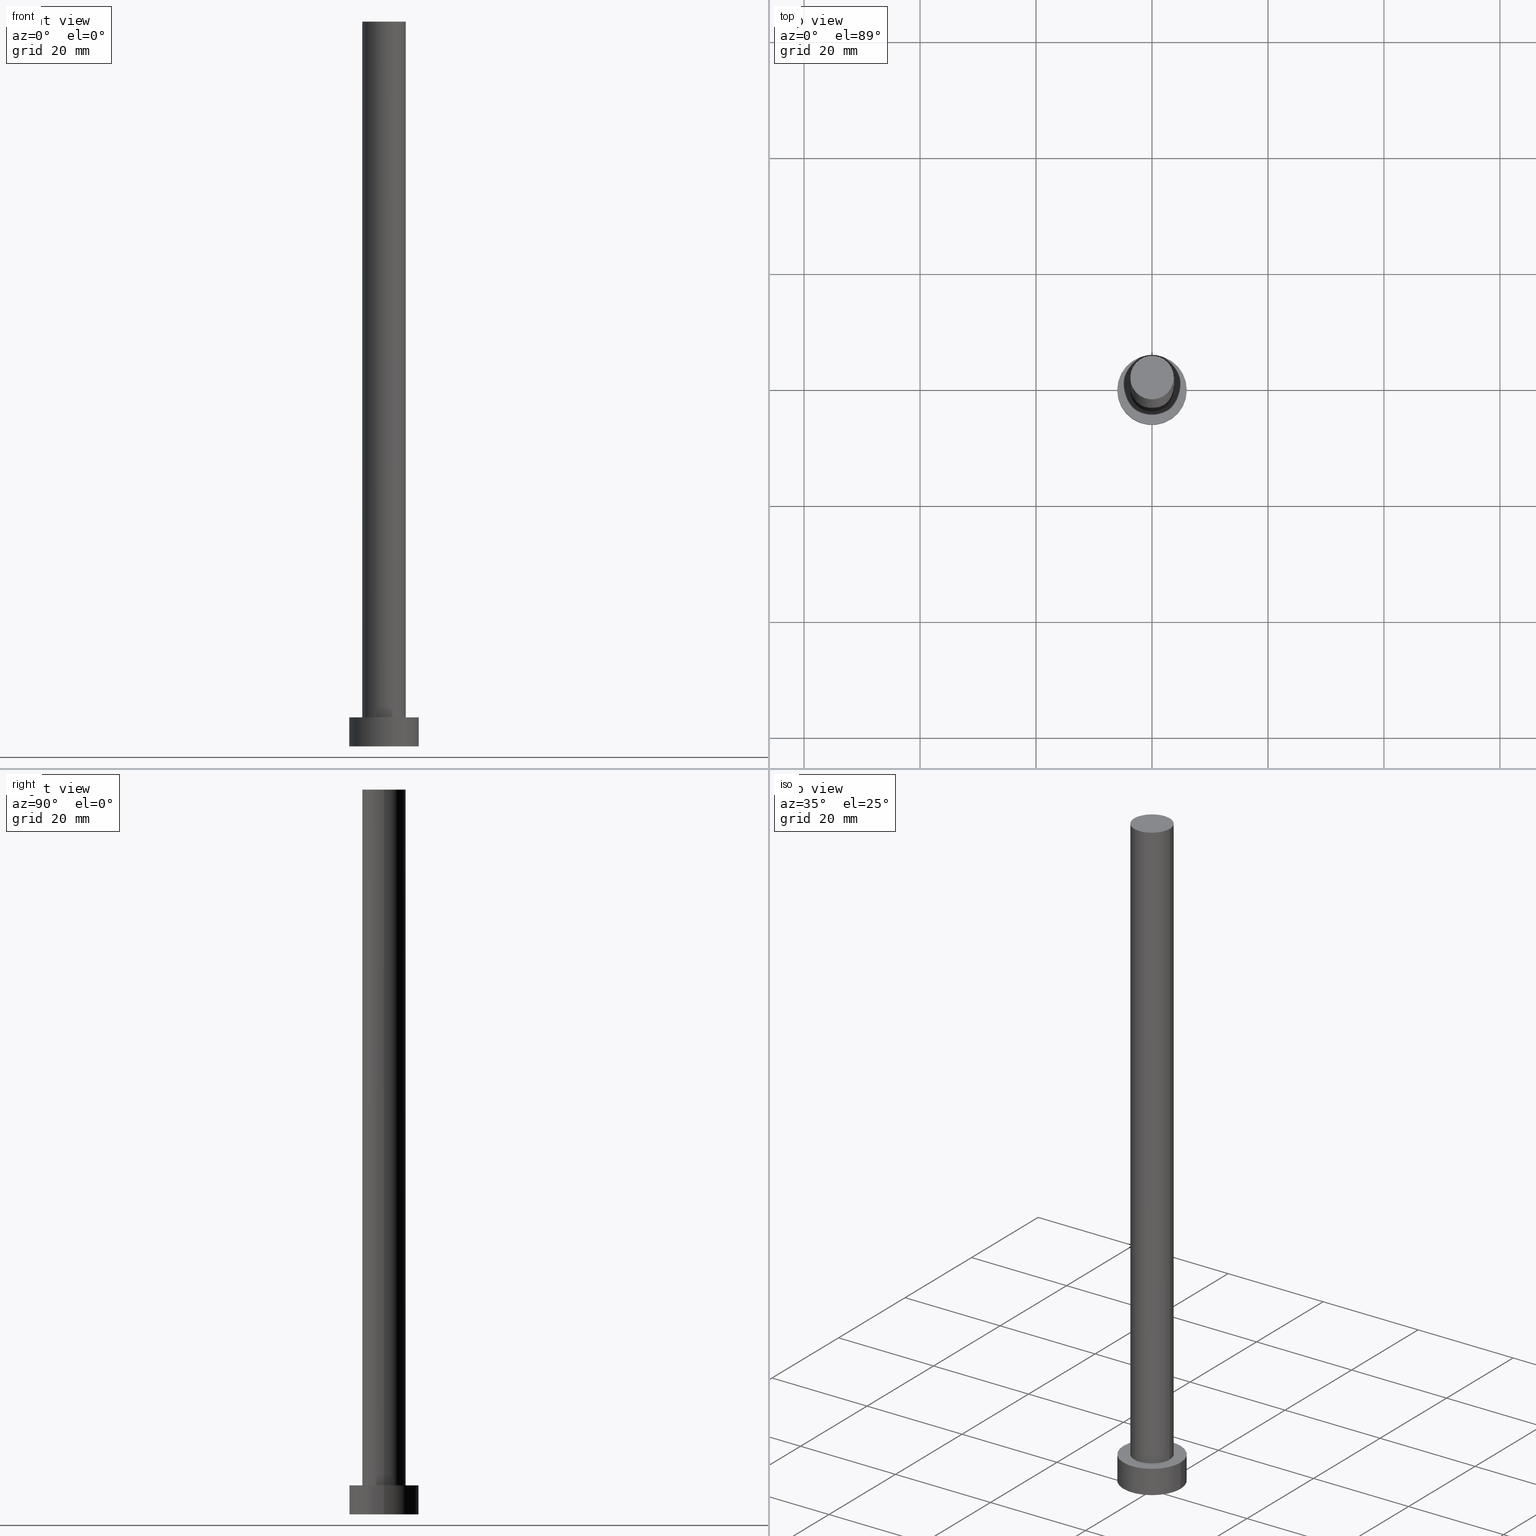
[diagram: canonical four-view strip — front | top / right | iso, engineering-drawing reading convention]
A machine part, canonical four-view strip (front | top / right | iso — engineering-drawing reading convention). The complete STEP part file that produces these views, byte-faithful:
ISO-10303-21;
HEADER;
FILE_DESCRIPTION (( 'STEP AP203' ),
    '1' );
FILE_NAME ('c810.STEP',
    '2023-02-13T13:35:08',
    ( '' ),
    ( '' ),
    'SwSTEP 2.0',
    'SolidWorks 2019',
    '' );
FILE_SCHEMA (( 'CONFIG_CONTROL_DESIGN' ));
ENDSEC;

DATA;
#1 = ADVANCED_FACE ( 'NONE', ( #90 ), #183, .T. ) ;
#2 = SHAPE_DEFINITION_REPRESENTATION ( #82, #41 ) ;
#3 = CARTESIAN_POINT ( 'NONE',  ( -6.000000000000000888, 0.000000000000000000, 5.000000000000000000 ) ) ;
#4 = ORIENTED_EDGE ( 'NONE', *, *, #112, .T. ) ;
#5 = APPROVAL ( #64, 'NEUR�EN�' ) ;
#6 = ORIENTED_EDGE ( 'NONE', *, *, #246, .T. ) ;
#7 = EDGE_LOOP ( 'NONE', ( #147, #161, #72, #6 ) ) ;
#8 = AXIS2_PLACEMENT_3D ( 'NONE', #249, #63, #117 ) ;
#9 = CIRCLE ( 'NONE', #78, 6.000000000000000888 ) ;
#10 = CARTESIAN_POINT ( 'NONE',  ( 0.000000000000000000, 0.000000000000000000, 5.000000000000000000 ) ) ;
#11 = ADVANCED_FACE ( 'NONE', ( #29 ), #107, .T. ) ;
#12 = UNCERTAINTY_MEASURE_WITH_UNIT (LENGTH_MEASURE( 1.000000000000000082E-05 ), #28, 'distance_accuracy_value', 'NONE');
#13 = CARTESIAN_POINT ( 'NONE',  ( 0.000000000000000000, 0.000000000000000000, 125.0000000000000000 ) ) ;
#14 = CARTESIAN_POINT ( 'NONE',  ( -6.000000000000000888, 0.000000000000000000, 5.000000000000000000 ) ) ;
#15 = CARTESIAN_POINT ( 'NONE',  ( 0.000000000000000000, 0.000000000000000000, 0.000000000000000000 ) ) ;
#16 = CARTESIAN_POINT ( 'NONE',  ( -3.750000000000000000, 0.000000000000000000, 125.0000000000000000 ) ) ;
#17 = AXIS2_PLACEMENT_3D ( 'NONE', #13, #113, #59 ) ;
#18 = PRODUCT_RELATED_PRODUCT_CATEGORY ( 'detail', '', ( #213 ) ) ;
#19 = PERSON_AND_ORGANIZATION ( #253, #127 ) ;
#20 = APPROVAL_DATE_TIME ( #98, #5 ) ;
#21 = DESIGN_CONTEXT ( 'detailed design', #32, 'design' ) ;
#22 = PERSON_AND_ORGANIZATION ( #253, #127 ) ;
#23 = COORDINATED_UNIVERSAL_TIME_OFFSET ( 1, 0, .AHEAD. ) ;
#24 = DIRECTION ( 'NONE',  ( 0.000000000000000000, 0.000000000000000000, 1.000000000000000000 ) ) ;
#25 = AXIS2_PLACEMENT_3D ( 'NONE', #89, #243, #162 ) ;
#26 = ORIENTED_EDGE ( 'NONE', *, *, #102, .F. ) ;
#27 = ORIENTED_EDGE ( 'NONE', *, *, #124, .F. ) ;
#28 =( LENGTH_UNIT ( ) NAMED_UNIT ( * ) SI_UNIT ( .MILLI., .METRE. ) );
#29 = FACE_OUTER_BOUND ( 'NONE', #224, .T. ) ;
#30 = EDGE_CURVE ( 'NONE', #202, #43, #55, .T. ) ;
#31 = FACE_OUTER_BOUND ( 'NONE', #200, .T. ) ;
#32 = APPLICATION_CONTEXT ( 'configuration controlled 3d designs of mechanical parts and assemblies' ) ;
#33 = AXIS2_PLACEMENT_3D ( 'NONE', #163, #75, #245 ) ;
#34 = ORIENTED_EDGE ( 'NONE', *, *, #199, .T. ) ;
#35 = APPROVAL ( #254, 'NEUR�EN�' ) ;
#36 = CARTESIAN_POINT ( 'NONE',  ( 0.000000000000000000, 0.000000000000000000, 125.0000000000000000 ) ) ;
#37 = DIRECTION ( 'NONE',  ( 1.000000000000000000, 0.000000000000000000, 0.000000000000000000 ) ) ;
#38 = DIRECTION ( 'NONE',  ( 1.000000000000000000, 0.000000000000000000, 0.000000000000000000 ) ) ;
#39 = DIRECTION ( 'NONE',  ( 1.000000000000000000, 0.000000000000000000, 0.000000000000000000 ) ) ;
#40 = FACE_OUTER_BOUND ( 'NONE', #132, .T. ) ;
#41 = ADVANCED_BREP_SHAPE_REPRESENTATION ( 'c810', ( #128, #56 ), #86 ) ;
#42 = ADVANCED_FACE ( 'NONE', ( #205, #31 ), #185, .T. ) ;
#43 = VERTEX_POINT ( 'NONE', #149 ) ;
#44 = LOCAL_TIME ( 14, 35, 8.000000000000000000, #198 ) ;
#45 = PERSON_AND_ORGANIZATION_ROLE ( 'creator' ) ;
#46 = AXIS2_PLACEMENT_3D ( 'NONE', #171, #93, #39 ) ;
#47 = APPLICATION_CONTEXT ( 'configuration controlled 3d designs of mechanical parts and assemblies' ) ;
#48 = CALENDAR_DATE ( 2023, 13, 2 ) ;
#49 = SECURITY_CLASSIFICATION_LEVEL ( 'unclassified' ) ;
#50 = AXIS2_PLACEMENT_3D ( 'NONE', #227, #244, #133 ) ;
#51 = DIRECTION ( 'NONE',  ( 1.000000000000000000, 0.000000000000000000, 0.000000000000000000 ) ) ;
#52 = ORIENTED_EDGE ( 'NONE', *, *, #30, .T. ) ;
#53 = VERTEX_POINT ( 'NONE', #145 ) ;
#54 = ORIENTED_EDGE ( 'NONE', *, *, #124, .T. ) ;
#55 = LINE ( 'NONE', #74, #222 ) ;
#56 = AXIS2_PLACEMENT_3D ( 'NONE', #68, #24, #51 ) ;
#57 = CIRCLE ( 'NONE', #104, 6.000000000000000888 ) ;
#58 = CARTESIAN_POINT ( 'NONE',  ( 0.000000000000000000, 0.000000000000000000, 0.000000000000000000 ) ) ;
#59 = DIRECTION ( 'NONE',  ( 1.000000000000000000, 0.000000000000000000, 0.000000000000000000 ) ) ;
#60 = FACE_OUTER_BOUND ( 'NONE', #242, .T. ) ;
#61 = ADVANCED_FACE ( 'NONE', ( #251 ), #116, .T. ) ;
#62 = DIRECTION ( 'NONE',  ( -0.000000000000000000, -0.000000000000000000, -1.000000000000000000 ) ) ;
#63 = DIRECTION ( 'NONE',  ( 0.000000000000000000, 0.000000000000000000, 1.000000000000000000 ) ) ;
#64 = APPROVAL_STATUS ( 'not_yet_approved' ) ;
#65 = CIRCLE ( 'NONE', #201, 6.000000000000000888 ) ;
#66 = DATE_TIME_ROLE ( 'creation_date' ) ;
#67 = APPROVAL_DATE_TIME ( #175, #229 ) ;
#68 = CARTESIAN_POINT ( 'NONE',  ( 0.000000000000000000, 0.000000000000000000, 0.000000000000000000 ) ) ;
#69 = ADVANCED_FACE ( 'NONE', ( #40 ), #232, .T. ) ;
#70 = ORIENTED_EDGE ( 'NONE', *, *, #30, .F. ) ;
#71 = CC_DESIGN_SECURITY_CLASSIFICATION ( #134, ( #228 ) ) ;
#72 = ORIENTED_EDGE ( 'NONE', *, *, #191, .T. ) ;
#73 =( NAMED_UNIT ( * ) SI_UNIT ( $, .STERADIAN. ) SOLID_ANGLE_UNIT ( ) );
#74 = CARTESIAN_POINT ( 'NONE',  ( 6.000000000000000888, 7.347880794884120722E-16, 5.000000000000000000 ) ) ;
#75 = DIRECTION ( 'NONE',  ( -0.000000000000000000, -0.000000000000000000, -1.000000000000000000 ) ) ;
#76 = DIRECTION ( 'NONE',  ( -1.000000000000000000, 0.000000000000000000, 0.000000000000000000 ) ) ;
#77 = EDGE_CURVE ( 'NONE', #225, #53, #94, .T. ) ;
#78 = AXIS2_PLACEMENT_3D ( 'NONE', #155, #115, #79 ) ;
#79 = DIRECTION ( 'NONE',  ( 1.000000000000000000, 0.000000000000000000, 0.000000000000000000 ) ) ;
#80 = DIRECTION ( 'NONE',  ( 0.000000000000000000, 0.000000000000000000, 1.000000000000000000 ) ) ;
#81 = LINE ( 'NONE', #208, #109 ) ;
#82 = PRODUCT_DEFINITION_SHAPE ( 'NONE', 'NONE',  #237 ) ;
#83 = PERSON_AND_ORGANIZATION ( #253, #127 ) ;
#84 = CIRCLE ( 'NONE', #25, 3.750000000000000000 ) ;
#85 = ADVANCED_FACE ( 'NONE', ( #190 ), #152, .T. ) ;
#86 =( GEOMETRIC_REPRESENTATION_CONTEXT ( 3 ) GLOBAL_UNCERTAINTY_ASSIGNED_CONTEXT ( ( #12 ) ) GLOBAL_UNIT_ASSIGNED_CONTEXT ( ( #28, #238, #73 ) ) REPRESENTATION_CONTEXT ( 'NONE', 'WORKASPACE' ) );
#87 = ORIENTED_EDGE ( 'NONE', *, *, #112, .F. ) ;
#88 = ORIENTED_EDGE ( 'NONE', *, *, #173, .F. ) ;
#89 = CARTESIAN_POINT ( 'NONE',  ( 0.000000000000000000, 0.000000000000000000, 5.000000000000000000 ) ) ;
#90 = FACE_OUTER_BOUND ( 'NONE', #7, .T. ) ;
#91 = DIRECTION ( 'NONE',  ( 0.000000000000000000, 0.000000000000000000, 1.000000000000000000 ) ) ;
#92 = CARTESIAN_POINT ( 'NONE',  ( -6.000000000000000888, 0.000000000000000000, 0.000000000000000000 ) ) ;
#93 = DIRECTION ( 'NONE',  ( 0.000000000000000000, 0.000000000000000000, 1.000000000000000000 ) ) ;
#94 = LINE ( 'NONE', #139, #184 ) ;
#95 = CC_DESIGN_APPROVAL ( #229, ( #237 ) ) ;
#96 = ORIENTED_EDGE ( 'NONE', *, *, #102, .T. ) ;
#97 = DIRECTION ( 'NONE',  ( 1.000000000000000000, 0.000000000000000000, 0.000000000000000000 ) ) ;
#98 = DATE_AND_TIME ( #176, #103 ) ;
#99 = PERSON_AND_ORGANIZATION ( #253, #127 ) ;
#100 = COORDINATED_UNIVERSAL_TIME_OFFSET ( 1, 0, .AHEAD. ) ;
#101 = CALENDAR_DATE ( 2023, 13, 2 ) ;
#102 = EDGE_CURVE ( 'NONE', #225, #226, #135, .T. ) ;
#103 = LOCAL_TIME ( 14, 35, 8.000000000000000000, #218 ) ;
#104 = AXIS2_PLACEMENT_3D ( 'NONE', #137, #210, #38 ) ;
#105 = VERTEX_POINT ( 'NONE', #92 ) ;
#106 = ORIENTED_EDGE ( 'NONE', *, *, #246, .F. ) ;
#107 = CYLINDRICAL_SURFACE ( 'NONE', #50, 6.000000000000000888 ) ;
#108 = CC_DESIGN_APPROVAL ( #35, ( #134 ) ) ;
#109 = VECTOR ( 'NONE', #211, 1000.000000000000000 ) ;
#110 = DIRECTION ( 'NONE',  ( -0.000000000000000000, -0.000000000000000000, -1.000000000000000000 ) ) ;
#111 = ORIENTED_EDGE ( 'NONE', *, *, #77, .T. ) ;
#112 = EDGE_CURVE ( 'NONE', #186, #202, #57, .T. ) ;
#113 = DIRECTION ( 'NONE',  ( 0.000000000000000000, 0.000000000000000000, 1.000000000000000000 ) ) ;
#114 = CC_DESIGN_PERSON_AND_ORGANIZATION_ASSIGNMENT ( #195, #45, ( #237 ) ) ;
#115 = DIRECTION ( 'NONE',  ( 0.000000000000000000, 0.000000000000000000, 1.000000000000000000 ) ) ;
#116 = PLANE ( 'NONE',  #240 ) ;
#117 = DIRECTION ( 'NONE',  ( 1.000000000000000000, 0.000000000000000000, -0.000000000000000000 ) ) ;
#118 = CC_DESIGN_APPROVAL ( #5, ( #228 ) ) ;
#119 = CIRCLE ( 'NONE', #46, 3.750000000000000000 ) ;
#120 = CALENDAR_DATE ( 2023, 13, 2 ) ;
#121 = DATE_TIME_ROLE ( 'classification_date' ) ;
#122 = CALENDAR_DATE ( 2023, 13, 2 ) ;
#123 = DATE_AND_TIME ( #48, #44 ) ;
#124 = EDGE_CURVE ( 'NONE', #43, #105, #216, .T. ) ;
#125 = DIRECTION ( 'NONE',  ( -0.000000000000000000, -0.000000000000000000, -1.000000000000000000 ) ) ;
#126 = ORIENTED_EDGE ( 'NONE', *, *, #164, .T. ) ;
#127 = ORGANIZATION ( 'NEUR�EN�', 'NEUR�EN�', '' ) ;
#128 = MANIFOLD_SOLID_BREP ( 'P�idat vysunut�m3', #150 ) ;
#129 = ORIENTED_EDGE ( 'NONE', *, *, #148, .T. ) ;
#130 = CC_DESIGN_DATE_AND_TIME_ASSIGNMENT ( #123, #121, ( #134 ) ) ;
#131 = CC_DESIGN_PERSON_AND_ORGANIZATION_ASSIGNMENT ( #177, #219, ( #228 ) ) ;
#132 = EDGE_LOOP ( 'NONE', ( #70, #87, #182, #241 ) ) ;
#133 = DIRECTION ( 'NONE',  ( -1.000000000000000000, 0.000000000000000000, 0.000000000000000000 ) ) ;
#134 = SECURITY_CLASSIFICATION ( '', '', #49 ) ;
#135 = CIRCLE ( 'NONE', #17, 3.750000000000000000 ) ;
#136 = LINE ( 'NONE', #3, #206 ) ;
#137 = CARTESIAN_POINT ( 'NONE',  ( 0.000000000000000000, 0.000000000000000000, 5.000000000000000000 ) ) ;
#138 = CARTESIAN_POINT ( 'NONE',  ( 3.750000000000000000, 4.592425496802573972E-16, 125.0000000000000000 ) ) ;
#139 = CARTESIAN_POINT ( 'NONE',  ( 3.750000000000000000, 4.592425496802573972E-16, 125.0000000000000000 ) ) ;
#140 = APPROVAL_ROLE ( '' ) ;
#141 = APPLICATION_PROTOCOL_DEFINITION ( 'international standard', 'config_control_design', 1994, #32 ) ;
#142 = PERSON_AND_ORGANIZATION_ROLE ( 'design_owner' ) ;
#143 = ORIENTED_EDGE ( 'NONE', *, *, #199, .F. ) ;
#144 = CC_DESIGN_DATE_AND_TIME_ASSIGNMENT ( #196, #66, ( #237 ) ) ;
#145 = CARTESIAN_POINT ( 'NONE',  ( 3.750000000000000000, 4.592425496802573972E-16, 5.000000000000000000 ) ) ;
#146 = ORIENTED_EDGE ( 'NONE', *, *, #164, .F. ) ;
#147 = ORIENTED_EDGE ( 'NONE', *, *, #77, .F. ) ;
#148 = EDGE_CURVE ( 'NONE', #226, #225, #180, .T. ) ;
#149 = CARTESIAN_POINT ( 'NONE',  ( 6.000000000000000888, 7.347880794884120722E-16, 0.000000000000000000 ) ) ;
#150 = CLOSED_SHELL ( 'NONE', ( #85, #11, #69, #42, #209, #1, #61 ) ) ;
#151 = CC_DESIGN_PERSON_AND_ORGANIZATION_ASSIGNMENT ( #83, #255, ( #134 ) ) ;
#152 = CYLINDRICAL_SURFACE ( 'NONE', #247, 3.750000000000000000 ) ;
#153 = PLANE ( 'NONE',  #8 ) ;
#154 = CARTESIAN_POINT ( 'NONE',  ( 0.000000000000000000, 0.000000000000000000, 5.000000000000000000 ) ) ;
#155 = CARTESIAN_POINT ( 'NONE',  ( 0.000000000000000000, 0.000000000000000000, 5.000000000000000000 ) ) ;
#156 = APPROVAL_ROLE ( '' ) ;
#157 = PERSON_AND_ORGANIZATION ( #253, #127 ) ;
#158 = COORDINATED_UNIVERSAL_TIME_OFFSET ( 1, 0, .AHEAD. ) ;
#159 = AXIS2_PLACEMENT_3D ( 'NONE', #15, #172, #97 ) ;
#160 = EDGE_LOOP ( 'NONE', ( #26, #111, #126, #181 ) ) ;
#161 = ORIENTED_EDGE ( 'NONE', *, *, #148, .F. ) ;
#162 = DIRECTION ( 'NONE',  ( 1.000000000000000000, 0.000000000000000000, 0.000000000000000000 ) ) ;
#163 = CARTESIAN_POINT ( 'NONE',  ( 0.000000000000000000, 0.000000000000000000, 125.0000000000000000 ) ) ;
#164 = EDGE_CURVE ( 'NONE', #53, #223, #119, .T. ) ;
#165 = CC_DESIGN_PERSON_AND_ORGANIZATION_ASSIGNMENT ( #22, #142, ( #213 ) ) ;
#166 = DIRECTION ( 'NONE',  ( 1.000000000000000000, 0.000000000000000000, -0.000000000000000000 ) ) ;
#167 = LOCAL_TIME ( 14, 35, 8.000000000000000000, #23 ) ;
#168 = AXIS2_PLACEMENT_3D ( 'NONE', #154, #62, #248 ) ;
#169 = CC_DESIGN_PERSON_AND_ORGANIZATION_ASSIGNMENT ( #99, #217, ( #228 ) ) ;
#170 = DIRECTION ( 'NONE',  ( 1.000000000000000000, 0.000000000000000000, -0.000000000000000000 ) ) ;
#171 = CARTESIAN_POINT ( 'NONE',  ( 0.000000000000000000, 0.000000000000000000, 5.000000000000000000 ) ) ;
#172 = DIRECTION ( 'NONE',  ( 0.000000000000000000, 0.000000000000000000, 1.000000000000000000 ) ) ;
#173 = EDGE_CURVE ( 'NONE', #105, #43, #65, .T. ) ;
#174 = DIRECTION ( 'NONE',  ( 0.000000000000000000, 0.000000000000000000, 1.000000000000000000 ) ) ;
#175 = DATE_AND_TIME ( #101, #221 ) ;
#176 = CALENDAR_DATE ( 2023, 13, 2 ) ;
#177 = PERSON_AND_ORGANIZATION ( #253, #127 ) ;
#178 = DATE_AND_TIME ( #122, #167 ) ;
#179 = MECHANICAL_CONTEXT ( 'NONE', #47, 'mechanical' ) ;
#180 = CIRCLE ( 'NONE', #194, 3.750000000000000000 ) ;
#181 = ORIENTED_EDGE ( 'NONE', *, *, #191, .F. ) ;
#182 = ORIENTED_EDGE ( 'NONE', *, *, #236, .T. ) ;
#183 = CYLINDRICAL_SURFACE ( 'NONE', #33, 3.750000000000000000 ) ;
#184 = VECTOR ( 'NONE', #214, 1000.000000000000000 ) ;
#185 = PLANE ( 'NONE',  #207 ) ;
#186 = VERTEX_POINT ( 'NONE', #14 ) ;
#187 = APPROVAL_PERSON_ORGANIZATION ( #157, #229, #234 ) ;
#188 = CARTESIAN_POINT ( 'NONE',  ( 0.000000000000000000, 0.000000000000000000, 125.0000000000000000 ) ) ;
#189 = DIRECTION ( 'NONE',  ( 1.000000000000000000, 0.000000000000000000, 0.000000000000000000 ) ) ;
#190 = FACE_OUTER_BOUND ( 'NONE', #160, .T. ) ;
#191 = EDGE_CURVE ( 'NONE', #226, #223, #81, .T. ) ;
#192 = CARTESIAN_POINT ( 'NONE',  ( -3.750000000000000000, 0.000000000000000000, 5.000000000000000000 ) ) ;
#193 = LOCAL_TIME ( 14, 35, 8.000000000000000000, #100 ) ;
#194 = AXIS2_PLACEMENT_3D ( 'NONE', #252, #231, #37 ) ;
#195 = PERSON_AND_ORGANIZATION ( #253, #127 ) ;
#196 = DATE_AND_TIME ( #120, #193 ) ;
#197 = APPROVAL_DATE_TIME ( #178, #35 ) ;
#198 = COORDINATED_UNIVERSAL_TIME_OFFSET ( 1, 0, .AHEAD. ) ;
#199 = EDGE_CURVE ( 'NONE', #202, #186, #9, .T. ) ;
#200 = EDGE_LOOP ( 'NONE', ( #4, #34 ) ) ;
#201 = AXIS2_PLACEMENT_3D ( 'NONE', #58, #174, #189 ) ;
#202 = VERTEX_POINT ( 'NONE', #233 ) ;
#203 = EDGE_LOOP ( 'NONE', ( #106, #146 ) ) ;
#204 = APPLICATION_PROTOCOL_DEFINITION ( 'international standard', 'config_control_design', 1994, #47 ) ;
#205 = FACE_BOUND ( 'NONE', #203, .T. ) ;
#206 = VECTOR ( 'NONE', #125, 1000.000000000000000 ) ;
#207 = AXIS2_PLACEMENT_3D ( 'NONE', #10, #91, #166 ) ;
#208 = CARTESIAN_POINT ( 'NONE',  ( -3.750000000000000000, 0.000000000000000000, 125.0000000000000000 ) ) ;
#209 = ADVANCED_FACE ( 'NONE', ( #60 ), #153, .F. ) ;
#210 = DIRECTION ( 'NONE',  ( 0.000000000000000000, 0.000000000000000000, 1.000000000000000000 ) ) ;
#211 = DIRECTION ( 'NONE',  ( -0.000000000000000000, -0.000000000000000000, -1.000000000000000000 ) ) ;
#212 = EDGE_LOOP ( 'NONE', ( #129, #96 ) ) ;
#213 = PRODUCT ( 'c810', 'c810', '', ( #179 ) ) ;
#214 = DIRECTION ( 'NONE',  ( -0.000000000000000000, -0.000000000000000000, -1.000000000000000000 ) ) ;
#215 = PERSON_AND_ORGANIZATION ( #253, #127 ) ;
#216 = CIRCLE ( 'NONE', #159, 6.000000000000000888 ) ;
#217 = PERSON_AND_ORGANIZATION_ROLE ( 'creator' ) ;
#218 = COORDINATED_UNIVERSAL_TIME_OFFSET ( 1, 0, .AHEAD. ) ;
#219 = PERSON_AND_ORGANIZATION_ROLE ( 'design_supplier' ) ;
#220 = ORIENTED_EDGE ( 'NONE', *, *, #236, .F. ) ;
#221 = LOCAL_TIME ( 14, 35, 8.000000000000000000, #158 ) ;
#222 = VECTOR ( 'NONE', #110, 1000.000000000000000 ) ;
#223 = VERTEX_POINT ( 'NONE', #192 ) ;
#224 = EDGE_LOOP ( 'NONE', ( #143, #52, #54, #220 ) ) ;
#225 = VERTEX_POINT ( 'NONE', #138 ) ;
#226 = VERTEX_POINT ( 'NONE', #16 ) ;
#227 = CARTESIAN_POINT ( 'NONE',  ( 0.000000000000000000, 0.000000000000000000, 5.000000000000000000 ) ) ;
#228 = PRODUCT_DEFINITION_FORMATION_WITH_SPECIFIED_SOURCE ( 'LIBOVOLN�', '', #213, .NOT_KNOWN. ) ;
#229 = APPROVAL ( #235, 'NEUR�EN�' ) ;
#230 = DIRECTION ( 'NONE',  ( -0.000000000000000000, -0.000000000000000000, -1.000000000000000000 ) ) ;
#231 = DIRECTION ( 'NONE',  ( 0.000000000000000000, 0.000000000000000000, 1.000000000000000000 ) ) ;
#232 = CYLINDRICAL_SURFACE ( 'NONE', #168, 6.000000000000000888 ) ;
#233 = CARTESIAN_POINT ( 'NONE',  ( 6.000000000000000888, 7.347880794884120722E-16, 5.000000000000000000 ) ) ;
#234 = APPROVAL_ROLE ( '' ) ;
#235 = APPROVAL_STATUS ( 'not_yet_approved' ) ;
#236 = EDGE_CURVE ( 'NONE', #186, #105, #136, .T. ) ;
#237 = PRODUCT_DEFINITION ( 'NEZN�M�', '', #228, #21 ) ;
#238 =( NAMED_UNIT ( * ) PLANE_ANGLE_UNIT ( ) SI_UNIT ( $, .RADIAN. ) );
#239 = APPROVAL_PERSON_ORGANIZATION ( #19, #35, #156 ) ;
#240 = AXIS2_PLACEMENT_3D ( 'NONE', #36, #80, #170 ) ;
#241 = ORIENTED_EDGE ( 'NONE', *, *, #173, .T. ) ;
#242 = EDGE_LOOP ( 'NONE', ( #88, #27 ) ) ;
#243 = DIRECTION ( 'NONE',  ( 0.000000000000000000, 0.000000000000000000, 1.000000000000000000 ) ) ;
#244 = DIRECTION ( 'NONE',  ( -0.000000000000000000, -0.000000000000000000, -1.000000000000000000 ) ) ;
#245 = DIRECTION ( 'NONE',  ( -1.000000000000000000, 0.000000000000000000, 0.000000000000000000 ) ) ;
#246 = EDGE_CURVE ( 'NONE', #223, #53, #84, .T. ) ;
#247 = AXIS2_PLACEMENT_3D ( 'NONE', #188, #230, #76 ) ;
#248 = DIRECTION ( 'NONE',  ( -1.000000000000000000, 0.000000000000000000, 0.000000000000000000 ) ) ;
#249 = CARTESIAN_POINT ( 'NONE',  ( 0.000000000000000000, 0.000000000000000000, 0.000000000000000000 ) ) ;
#250 = APPROVAL_PERSON_ORGANIZATION ( #215, #5, #140 ) ;
#251 = FACE_OUTER_BOUND ( 'NONE', #212, .T. ) ;
#252 = CARTESIAN_POINT ( 'NONE',  ( 0.000000000000000000, 0.000000000000000000, 125.0000000000000000 ) ) ;
#253 = PERSON ( 'NEUR�EN�', 'NEUR�EN�', 'NEUR�EN�', ('NEUR�EN�'), ('NEUR�EN�'), ('NEUR�EN�') ) ;
#254 = APPROVAL_STATUS ( 'not_yet_approved' ) ;
#255 = PERSON_AND_ORGANIZATION_ROLE ( 'classification_officer' ) ;
ENDSEC;
END-ISO-10303-21;
